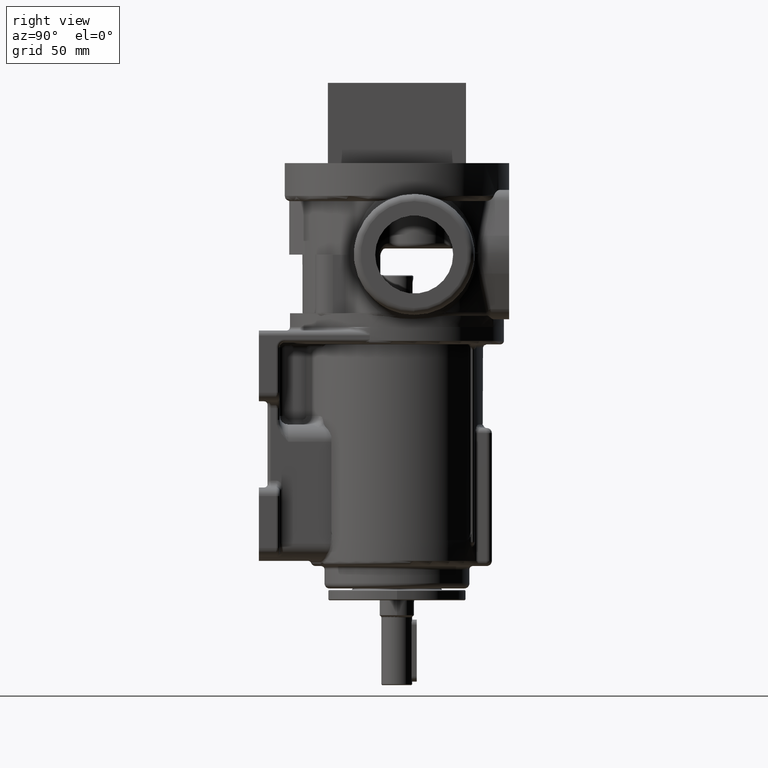
[diagram: clean part render]
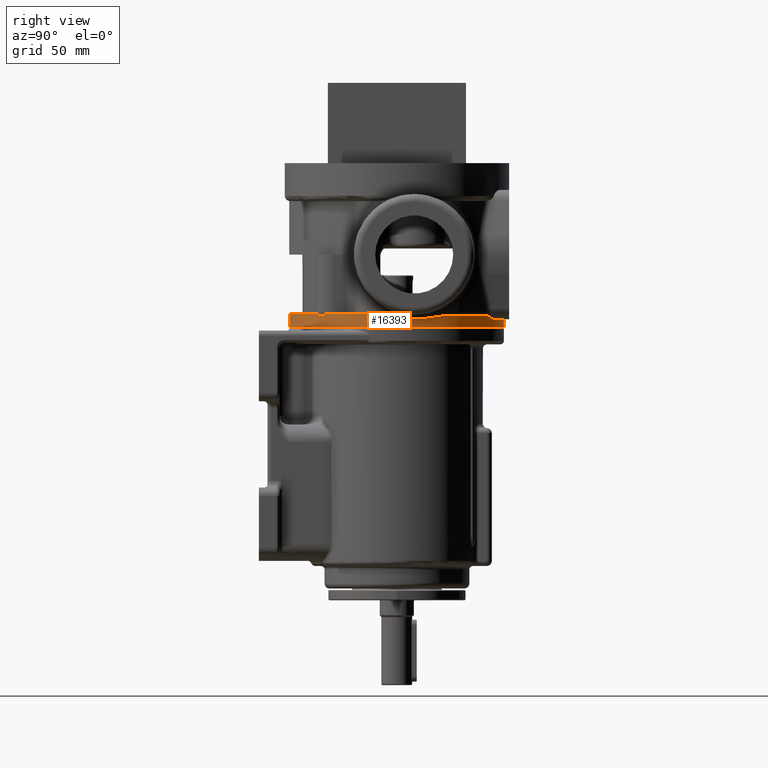
[diagram: same view with one face highlighted and labeled with its STEP entity id]
A machine part, right view. The second image highlights one B-rep face of the part: STEP entity #16393.
In plain terms, the highlighted cylindrical surface (partial cylindrical patch) has radius 62 mm, axis along (0, 0, 1).
Its self-contained STEP definition (entity closure, byte-faithful):
#3144=CARTESIAN_POINT('',(0.E0,0.E0,1.989519660128E-13));
#3145=DIRECTION('',(0.E0,0.E0,1.E0));
#3146=DIRECTION('',(8.906250000033E-1,-4.547385065827E-1,0.E0));
#3147=AXIS2_PLACEMENT_3D('',#3144,#3145,#3146);
#3153=CARTESIAN_POINT('',(0.E0,0.E0,4.5E0));
#3154=DIRECTION('',(0.E0,0.E0,1.E0));
#3155=DIRECTION('',(4.244078932258E-1,9.054711150377E-1,0.E0));
#3156=AXIS2_PLACEMENT_3D('',#3153,#3154,#3155);
#3158=DIRECTION('',(0.E0,0.E0,-1.E0));
#3159=VECTOR('',#3158,4.5E0);
#3160=CARTESIAN_POINT('',(-1.275533733362E-14,6.2E1,4.5E0));
#3161=LINE('',#3160,#3159);
#3162=DIRECTION('',(-2.796374243275E-14,0.E0,-1.E0));
#3163=VECTOR('',#3162,8.E0);
#3164=CARTESIAN_POINT('',(1.194526618915E-14,-6.2E1,8.E0));
#3165=LINE('',#3164,#3163);
#3166=CARTESIAN_POINT('',(0.E0,0.E0,8.E0));
#3167=DIRECTION('',(0.E0,0.E0,-1.E0));
#3168=DIRECTION('',(6.687776997121E-1,-7.434624323850E-1,0.E0));
#3169=AXIS2_PLACEMENT_3D('',#3166,#3167,#3168);
#3171=CARTESIAN_POINT('',(4.146421738215E1,-4.609467080787E1,8.E0));
#3172=CARTESIAN_POINT('',(4.147404042241E1,-4.608583454395E1,7.970795917285E0));
#3173=CARTESIAN_POINT('',(4.149566080502E1,-4.606637485331E1,7.912018602871E0));
#3174=CARTESIAN_POINT('',(4.153436735779E1,-4.603148256354E1,7.822991609907E0));
#3175=CARTESIAN_POINT('',(4.157974553056E1,-4.599050129453E1,7.733278020147E0));
#3176=CARTESIAN_POINT('',(4.163247500035E1,-4.594277914498E1,7.642707917360E0));
#3177=CARTESIAN_POINT('',(4.169291283188E1,-4.588794558406E1,7.551816065525E0));
#3178=CARTESIAN_POINT('',(4.176193193473E1,-4.582514957003E1,7.460456615792E0));
#3179=CARTESIAN_POINT('',(4.184013814812E1,-4.575376524199E1,7.369110925880E0));
#3180=CARTESIAN_POINT('',(4.192790572751E1,-4.567336208268E1,7.278520710927E0));
#3181=CARTESIAN_POINT('',(4.202604254382E1,-4.558309266147E1,7.189047049205E0));
#3182=CARTESIAN_POINT('',(4.213474052481E1,-4.548265220351E1,7.101721345257E0));
#3183=CARTESIAN_POINT('',(4.225375723908E1,-4.537212380746E1,7.017740186305E0));
#3184=CARTESIAN_POINT('',(4.238365259699E1,-4.525082796420E1,6.937679468659E0));
#3185=CARTESIAN_POINT('',(4.252440007743E1,-4.511860880540E1,6.862550387407E0));
#3186=CARTESIAN_POINT('',(4.267606528769E1,-4.497520406876E1,6.793305563639E0));
#3187=CARTESIAN_POINT('',(4.283726787940E1,-4.482171327741E1,6.731425141900E0));
#3188=CARTESIAN_POINT('',(4.300717108117E1,-4.465873544009E1,6.677890428626E0));
#3189=CARTESIAN_POINT('',(4.318449464332E1,-4.448730716675E1,6.633696263732E0));
#3190=CARTESIAN_POINT('',(4.336775726738E1,-4.430869229807E1,6.599664487329E0));
#3191=CARTESIAN_POINT('',(4.355605432807E1,-4.412362071628E1,6.576408868782E0));
#3192=CARTESIAN_POINT('',(4.374741201828E1,-4.393391142011E1,6.564563206114E0));
#3193=CARTESIAN_POINT('',(4.394015403221E1,-4.374114174490E1,6.564575189429E0));
#3194=CARTESIAN_POINT('',(4.412975926730E1,-4.354983469687E1,6.576435896201E0));
#3195=CARTESIAN_POINT('',(4.431474764592E1,-4.336156951742E1,6.599699449613E0));
#3196=CARTESIAN_POINT('',(4.449327928627E1,-4.317834136349E1,6.633732189165E0));
#3197=CARTESIAN_POINT('',(4.466464535254E1,-4.300103328516E1,6.677925548693E0));
#3198=CARTESIAN_POINT('',(4.482757631334E1,-4.283113238500E1,6.731459386259E0));
#3199=CARTESIAN_POINT('',(4.498105880169E1,-4.266989434005E1,6.793352245413E0));
#3200=CARTESIAN_POINT('',(4.512445580655E1,-4.251819552498E1,6.862613042557E0));
#3201=CARTESIAN_POINT('',(4.525664268372E1,-4.237744361945E1,6.937745260253E0));
#3202=CARTESIAN_POINT('',(4.537789659010E1,-4.224755753190E1,7.017798822837E0));
#3203=CARTESIAN_POINT('',(4.548839639046E1,-4.212853905896E1,7.101777938774E0));
#3204=CARTESIAN_POINT('',(4.558881201598E1,-4.201983823182E1,7.189102637644E0));
#3205=CARTESIAN_POINT('',(4.567904552910E1,-4.192171370140E1,7.278560167102E0));
#3206=CARTESIAN_POINT('',(4.575942290301E1,-4.183395042808E1,7.369138608853E0));
#3207=CARTESIAN_POINT('',(4.583078503874E1,-4.175574731333E1,7.460472184452E0));
#3208=CARTESIAN_POINT('',(4.589356288620E1,-4.168672948773E1,7.551819813436E0));
#3209=CARTESIAN_POINT('',(4.594838419405E1,-4.162628880959E1,7.642704563600E0));
#3210=CARTESIAN_POINT('',(4.599609946293E1,-4.157355267473E1,7.733274343914E0));
#3211=CARTESIAN_POINT('',(4.603707628180E1,-4.152816714391E1,7.822991162638E0));
#3212=CARTESIAN_POINT('',(4.607196464358E1,-4.148945446326E1,7.912021837053E0));
#3213=CARTESIAN_POINT('',(4.609142071157E1,-4.146783224792E1,7.970797504435E0));
#3214=CARTESIAN_POINT('',(4.610025517220E1,-4.145800855152E1,8.E0));
#3216=CARTESIAN_POINT('',(0.E0,0.E0,8.E0));
#3217=DIRECTION('',(0.E0,0.E0,-1.E0));
#3218=DIRECTION('',(9.668013314285E-1,-2.555292264067E-1,0.E0));
#3219=AXIS2_PLACEMENT_3D('',#3216,#3217,#3218);
#3221=CARTESIAN_POINT('',(5.994168254857E1,-1.584281203722E1,8.E0));
#3222=CARTESIAN_POINT('',(5.994580577703E1,-1.582721169739E1,7.975399444953E0));
#3223=CARTESIAN_POINT('',(5.995489864692E1,-1.579275995845E1,7.925014709418E0));
#3224=CARTESIAN_POINT('',(5.997121942400E1,-1.573068558547E1,7.846785501189E0));
#3225=CARTESIAN_POINT('',(5.999061107884E1,-1.565659255770E1,7.765587042459E0));
#3226=CARTESIAN_POINT('',(6.001349408609E1,-1.556867853469E1,7.681344165447E0));
#3227=CARTESIAN_POINT('',(6.004023199892E1,-1.546528222265E1,7.594386174053E0));
#3228=CARTESIAN_POINT('',(6.007127731307E1,-1.534430570716E1,7.504853794067E0));
#3229=CARTESIAN_POINT('',(6.010752842778E1,-1.520175851240E1,7.412041747454E0));
#3230=CARTESIAN_POINT('',(6.014970721798E1,-1.503410500673E1,7.316312576233E0));
#3231=CARTESIAN_POINT('',(6.019811565270E1,-1.483920999541E1,7.219175476097E0));
#3232=CARTESIAN_POINT('',(6.025249798199E1,-1.461698693381E1,7.122899631150E0));
#3233=CARTESIAN_POINT('',(6.031353998680E1,-1.436323829971E1,7.027941711480E0));
#3234=CARTESIAN_POINT('',(6.038166277493E1,-1.407437678935E1,6.935571540325E0));
#3235=CARTESIAN_POINT('',(6.045716837808E1,-1.374673836381E1,6.847479328404E0));
#3236=CARTESIAN_POINT('',(6.053893504512E1,-1.338238478474E1,6.766912017023E0));
#3237=CARTESIAN_POINT('',(6.062562339819E1,-1.298435358061E1,6.696647679997E0));
#3238=CARTESIAN_POINT('',(6.071571473729E1,-1.255664562124E1,6.639101931779E0));
#3239=CARTESIAN_POINT('',(6.080742254093E1,-1.210502294462E1,6.596294543970E0));
#3240=CARTESIAN_POINT('',(6.089949360008E1,-1.163317953824E1,6.569652970377E0));
#3241=CARTESIAN_POINT('',(6.095989405088E1,-1.131013412702E1,6.563508297173E0));
#3242=CARTESIAN_POINT('',(6.098987765221E1,-1.114606764597E1,6.563508300704E0));
#3244=CARTESIAN_POINT('',(0.E0,0.E0,6.563508326896E0));
#3245=DIRECTION('',(0.E0,0.E0,1.E0));
#3246=DIRECTION('',(9.837077026641E-1,-1.797752922935E-1,0.E0));
#3247=AXIS2_PLACEMENT_3D('',#3244,#3245,#3246);
#3249=CARTESIAN_POINT('',(6.129941904318E1,-9.294150040134E0,6.563508326843E0));
#3250=CARTESIAN_POINT('',(6.132393988173E1,-9.132423238871E0,6.563508274981E0));
#3251=CARTESIAN_POINT('',(6.137374251634E1,-8.795254665352E0,6.557445066608E0));
#3252=CARTESIAN_POINT('',(6.144904804582E1,-8.253646845722E0,6.528002285198E0));
#3253=CARTESIAN_POINT('',(6.152607299710E1,-7.659885144414E0,6.475613748256E0));
#3254=CARTESIAN_POINT('',(6.160460245862E1,-7.002493141020E0,6.397675865011E0));
#3255=CARTESIAN_POINT('',(6.168386915861E1,-6.269162368617E0,6.292412898697E0));
#3256=CARTESIAN_POINT('',(6.176224272916E1,-5.447799463725E0,6.159531308859E0));
#3257=CARTESIAN_POINT('',(6.183704478992E1,-4.527374141137E0,6.000976766587E0));
#3258=CARTESIAN_POINT('',(6.190444902448E1,-3.497566033298E0,5.821148803796E0));
#3259=CARTESIAN_POINT('',(6.195882642796E1,-2.360286215671E0,5.628949113538E0));
#3260=CARTESIAN_POINT('',(6.199428508244E1,-1.125557304072E0,5.435599990966E0));
#3261=CARTESIAN_POINT('',(6.200432647115E1,1.978119275636E-1,5.252677783262E0));
#3262=CARTESIAN_POINT('',(6.198663897956E1,1.481879453599E0,5.102117639643E0));
#3263=CARTESIAN_POINT('',(6.194278958772E1,2.768305251290E0,4.977787863646E0));
#3264=CARTESIAN_POINT('',(6.187041313229E1,4.072382461758E0,4.879358410836E0));
#3265=CARTESIAN_POINT('',(6.177948012555E1,5.265982690435E0,4.812101484995E0));
#3266=CARTESIAN_POINT('',(6.167556751697E1,6.364042062844E0,4.767327122120E0));
#3267=CARTESIAN_POINT('',(6.156119788775E1,7.385808533717E0,4.739290087186E0));
#3268=CARTESIAN_POINT('',(6.143650165418E1,8.359070359126E0,4.723778263295E0));
#3269=CARTESIAN_POINT('',(6.134353911096E1,9.004134496091E0,4.720413470701E0));
#3270=CARTESIAN_POINT('',(6.129499104130E1,9.323308063507E0,4.720413464966E0));
#3272=CARTESIAN_POINT('',(6.129499104130E1,9.323308063507E0,4.720413464966E0));
#3273=CARTESIAN_POINT('',(6.125007957310E1,9.618573222824E0,4.720413481832E0));
#3274=CARTESIAN_POINT('',(6.115528135839E1,1.021332457724E1,4.723242603318E0));
#3275=CARTESIAN_POINT('',(6.099566965394E1,1.112734510739E1,4.736744928092E0));
#3276=CARTESIAN_POINT('',(6.082310939462E1,1.203428493772E1,4.759809268249E0));
#3277=CARTESIAN_POINT('',(6.064430133932E1,1.290432539946E1,4.791488086481E0));
#3278=CARTESIAN_POINT('',(6.045624985816E1,1.375900957478E1,4.832074128476E0));
#3279=CARTESIAN_POINT('',(6.023515603245E1,1.470028619124E1,4.888033791838E0));
#3280=CARTESIAN_POINT('',(5.995103775234E1,1.582359236145E1,4.971999766864E0));
#3281=CARTESIAN_POINT('',(5.961089840741E1,1.706179980050E1,5.088384265267E0));
#3282=CARTESIAN_POINT('',(5.922817176684E1,1.834957100176E1,5.235401485333E0));
#3283=CARTESIAN_POINT('',(5.877512501080E1,1.975255760574E1,5.426554001243E0));
#3284=CARTESIAN_POINT('',(5.834026644712E1,2.099821473205E1,5.620806503220E0));
#3285=CARTESIAN_POINT('',(5.792606572952E1,2.211330010486E1,5.808547276635E0));
#3286=CARTESIAN_POINT('',(5.753428998026E1,2.311164283384E1,5.982904239459E0));
#3287=CARTESIAN_POINT('',(5.717045583782E1,2.399591214885E1,6.136248454308E0));
#3288=CARTESIAN_POINT('',(5.684007730131E1,2.476731687632E1,6.263649991319E0));
#3289=CARTESIAN_POINT('',(5.652208577935E1,2.548431696536E1,6.371338316222E0));
#3290=CARTESIAN_POINT('',(5.620929626555E1,2.616663270420E1,6.458293289039E0));
#3291=CARTESIAN_POINT('',(5.590678266567E1,2.680650041050E1,6.520375453965E0));
#3292=CARTESIAN_POINT('',(5.561678296941E1,2.740271375E1,6.556328710531E0));
#3293=CARTESIAN_POINT('',(5.543510000353E1,2.776666563710E1,6.563508233067E0));
#3294=CARTESIAN_POINT('',(5.534721028278E1,2.794076437598E1,6.563508373951E0));
#3296=CARTESIAN_POINT('',(0.E0,0.E0,6.563508326896E0));
#3297=DIRECTION('',(0.E0,0.E0,1.E0));
#3298=DIRECTION('',(8.926969767575E-1,4.506574172118E-1,0.E0));
#3299=AXIS2_PLACEMENT_3D('',#3296,#3297,#3298);
#3301=CARTESIAN_POINT('',(3.511607315213E1,5.109658898962E1,6.563523603462E0));
#3302=CARTESIAN_POINT('',(3.507472582446E1,5.112500489393E1,6.563524596138E0));
#3303=CARTESIAN_POINT('',(3.498995455109E1,5.118311886829E1,6.566889320924E0));
#3304=CARTESIAN_POINT('',(3.485362762400E1,5.127605577354E1,6.580450162743E0));
#3305=CARTESIAN_POINT('',(3.471679475694E1,5.136879514188E1,6.599396024823E0));
#3306=CARTESIAN_POINT('',(3.458356212386E1,5.145857847504E1,6.620353081359E0));
#3307=CARTESIAN_POINT('',(3.446049996909E1,5.154105597141E1,6.640196224554E0));
#3308=CARTESIAN_POINT('',(3.434954963525E1,5.161505626623E1,6.657375556863E0));
#3309=CARTESIAN_POINT('',(3.424196692549E1,5.168649028669E1,6.672817693923E0));
#3310=CARTESIAN_POINT('',(3.413477550596E1,5.175734137270E1,6.686366823725E0));
#3311=CARTESIAN_POINT('',(3.403365060079E1,5.182388508608E1,6.697068095728E0));
#3312=CARTESIAN_POINT('',(3.394207828172E1,5.188389828886E1,6.704779681924E0));
#3313=CARTESIAN_POINT('',(3.385997333692E1,5.193751080767E1,6.709949072370E0));
#3314=CARTESIAN_POINT('',(3.378780988356E1,5.198447879602E1,6.713073166511E0));
#3315=CARTESIAN_POINT('',(3.372501212057E1,5.202523620071E1,6.714660912278E0));
#3316=CARTESIAN_POINT('',(3.366885164794E1,5.206159610883E1,6.715161003321E0));
#3317=CARTESIAN_POINT('',(3.361691609280E1,5.209514526299E1,6.714854495371E0));
#3318=CARTESIAN_POINT('',(3.356671424961E1,5.212750610864E1,6.713852737335E0));
#3319=CARTESIAN_POINT('',(3.351574203244E1,5.216029404158E1,6.712112801964E0));
#3320=CARTESIAN_POINT('',(3.346441093422E1,5.219324134259E1,6.709599137474E0));
#3321=CARTESIAN_POINT('',(3.341312395863E1,5.222608902154E1,6.706319023483E0));
#3322=CARTESIAN_POINT('',(3.336235052244E1,5.225853765717E1,6.702330421008E0));
#3323=CARTESIAN_POINT('',(3.331210209530E1,5.229058278137E1,6.697670121494E0));
#3324=CARTESIAN_POINT('',(3.326075938105E1,5.232325654652E1,6.692204305879E0));
#3325=CARTESIAN_POINT('',(3.320715206808E1,5.235729587994E1,6.685736937154E0));
#3326=CARTESIAN_POINT('',(3.315256066994E1,5.239188026755E1,6.678343523708E0));
#3327=CARTESIAN_POINT('',(3.309714318938E1,5.242690739253E1,6.670023521436E0));
#3328=CARTESIAN_POINT('',(3.303789105618E1,5.246426912478E1,6.660223697448E0));
#3329=CARTESIAN_POINT('',(3.297224501772E1,5.250555535168E1,6.648286098355E0));
#3330=CARTESIAN_POINT('',(3.289703003311E1,5.255271993246E1,6.633215488985E0));
#3331=CARTESIAN_POINT('',(3.281310000629E1,5.260517098463E1,6.614635170307E0));
#3332=CARTESIAN_POINT('',(3.272254569573E1,5.266155167533E1,6.592538677134E0));
#3333=CARTESIAN_POINT('',(3.262669060174E1,5.272099697408E1,6.566921970112E0));
#3334=CARTESIAN_POINT('',(3.252591290007E1,5.278323472837E1,6.537599538553E0));
#3335=CARTESIAN_POINT('',(3.242019287496E1,5.284824070613E1,6.504334050692E0));
#3336=CARTESIAN_POINT('',(3.230678875176E1,5.291765095647E1,6.465954448033E0));
#3337=CARTESIAN_POINT('',(3.218311703831E1,5.299296764002E1,6.421107537772E0));
#3338=CARTESIAN_POINT('',(3.204688731222E1,5.307547799019E1,6.368370066289E0));
#3339=CARTESIAN_POINT('',(3.189483312392E1,5.316701409485E1,6.305789556635E0));
#3340=CARTESIAN_POINT('',(3.172171025026E1,5.327052435270E1,6.230340253497E0));
#3341=CARTESIAN_POINT('',(3.152491569681E1,5.338724729980E1,6.139918218497E0));
#3342=CARTESIAN_POINT('',(3.132005482565E1,5.350769457426E1,6.041677129085E0));
#3343=CARTESIAN_POINT('',(3.111742996092E1,5.362575580804E1,5.941621907659E0));
#3344=CARTESIAN_POINT('',(3.093498098154E1,5.373120614368E1,5.850039510433E0));
#3345=CARTESIAN_POINT('',(3.074103210028E1,5.384240824893E1,5.751902712301E0));
#3346=CARTESIAN_POINT('',(3.056168760207E1,5.394438118705E1,5.661267041750E0));
#3347=CARTESIAN_POINT('',(3.039442723092E1,5.403878409706E1,5.577507541222E0));
#3348=CARTESIAN_POINT('',(3.024056221214E1,5.412501982242E1,5.501578122889E0));
#3349=CARTESIAN_POINT('',(3.010127173089E1,5.420259250771E1,5.434078722378E0));
#3350=CARTESIAN_POINT('',(2.997546436928E1,5.427225666850E1,5.374328753700E0));
#3351=CARTESIAN_POINT('',(2.985882551017E1,5.433650805080E1,5.320066333586E0));
#3352=CARTESIAN_POINT('',(2.974740980911E1,5.439758174482E1,5.269324456067E0));
#3353=CARTESIAN_POINT('',(2.963659544916E1,5.445803485041E1,5.220020286081E0));
#3354=CARTESIAN_POINT('',(2.952489376471E1,5.451867614589E1,5.171591548944E0));
#3355=CARTESIAN_POINT('',(2.941277177384E1,5.457924788603E1,5.124329392422E0));
#3356=CARTESIAN_POINT('',(2.933745199881E1,5.461973771702E1,5.093523894541E0));
#3357=CARTESIAN_POINT('',(2.929966880161E1,5.463999824410E1,5.078316792652E0));
#3359=CARTESIAN_POINT('',(2.929966880161E1,5.463999824410E1,5.078316792652E0));
#3360=CARTESIAN_POINT('',(2.918096357888E1,5.470365168156E1,5.030544312062E0));
#3361=CARTESIAN_POINT('',(2.894146697943E1,5.483108291351E1,4.940772391703E0));
#3362=CARTESIAN_POINT('',(2.857506271216E1,5.502293565910E1,4.823170619851E0));
#3363=CARTESIAN_POINT('',(2.820402018057E1,5.521405351492E1,4.723482707949E0));
#3364=CARTESIAN_POINT('',(2.782946428752E1,5.540378965813E1,4.641879745833E0));
#3365=CARTESIAN_POINT('',(2.745232628622E1,5.559162854477E1,4.578427933873E0));
#3366=CARTESIAN_POINT('',(2.707278587618E1,5.577744918749E1,4.533080935026E0));
#3367=CARTESIAN_POINT('',(2.669244271748E1,5.596045530652E1,4.505974493270E0));
#3368=CARTESIAN_POINT('',(2.643961647106E1,5.607999772992E1,4.5E0));
#3369=CARTESIAN_POINT('',(2.631328938E1,5.613920913234E1,4.5E0));
#3376=CARTESIAN_POINT('',(0.E0,0.E0,0.E0));
#3377=DIRECTION('',(0.E0,0.E0,1.E0));
#3378=DIRECTION('',(0.E0,-1.E0,0.E0));
#3379=AXIS2_PLACEMENT_3D('',#3376,#3377,#3378);
#12264=CARTESIAN_POINT('',(5.521875000021E1,-2.819378740813E1,
1.989519779649E-13));
#12265=CARTESIAN_POINT('',(0.E0,6.2E1,1.989519397294E-13));
#12266=VERTEX_POINT('',#12264);
#12267=VERTEX_POINT('',#12265);
#12269=CARTESIAN_POINT('',(0.E0,-6.2E1,0.E0));
#12271=VERTEX_POINT('',#12269);
#12272=CARTESIAN_POINT('',(1.194526618915E-14,-6.2E1,8.E0));
#12273=VERTEX_POINT('',#12272);
#12459=CARTESIAN_POINT('',(-1.275533756243E-14,6.2E1,4.5E0));
#12461=VERTEX_POINT('',#12459);
#12474=CARTESIAN_POINT('',(5.994168254857E1,-1.584281203722E1,8.E0));
#12476=VERTEX_POINT('',#12474);
#12494=CARTESIAN_POINT('',(4.610025517220E1,-4.145800855152E1,8.E0));
#12495=VERTEX_POINT('',#12494);
#12496=CARTESIAN_POINT('',(4.146421738215E1,-4.609467080787E1,8.E0));
#12498=VERTEX_POINT('',#12496);
#12512=CARTESIAN_POINT('',(2.631328938E1,5.613920913234E1,4.5E0));
#12513=VERTEX_POINT('',#12512);
#12514=VERTEX_POINT('',#3359);
#12515=CARTESIAN_POINT('',(5.534721255897E1,2.794075986713E1,6.563508326896E0));
#12516=CARTESIAN_POINT('',(3.511607315213E1,5.109658898962E1,6.563508326896E0));
#12517=VERTEX_POINT('',#12515);
#12518=VERTEX_POINT('',#12516);
#12519=CARTESIAN_POINT('',(6.098987756518E1,-1.114606812220E1,
6.563508326896E0));
#12520=CARTESIAN_POINT('',(6.129941904232E1,-9.294150045810E0,
6.563508326896E0));
#12521=VERTEX_POINT('',#12519);
#12522=VERTEX_POINT('',#12520);
#12523=VERTEX_POINT('',#3272);
#16360=CARTESIAN_POINT('',(0.E0,0.E0,-7.405E1));
#16361=DIRECTION('',(0.E0,0.E0,1.E0));
#16362=DIRECTION('',(0.E0,-1.E0,0.E0));
#16363=AXIS2_PLACEMENT_3D('',#16360,#16361,#16362);
#16364=CYLINDRICAL_SURFACE('',#16363,6.2E1);
#16365=ORIENTED_EDGE('',*,*,#16349,.T.);
#16366=ORIENTED_EDGE('',*,*,#16338,.T.);
#16367=ORIENTED_EDGE('',*,*,#16336,.F.);
#16369=ORIENTED_EDGE('',*,*,#16368,.F.);
#16370=ORIENTED_EDGE('',*,*,#16319,.F.);
#16372=ORIENTED_EDGE('',*,*,#16371,.F.);
#16374=ORIENTED_EDGE('',*,*,#16373,.T.);
#16376=ORIENTED_EDGE('',*,*,#16375,.F.);
#16378=ORIENTED_EDGE('',*,*,#16377,.T.);
#16380=ORIENTED_EDGE('',*,*,#16379,.T.);
#16382=ORIENTED_EDGE('',*,*,#16381,.T.);
#16384=ORIENTED_EDGE('',*,*,#16383,.T.);
#16386=ORIENTED_EDGE('',*,*,#16385,.T.);
#16388=ORIENTED_EDGE('',*,*,#16387,.T.);
#16390=ORIENTED_EDGE('',*,*,#16389,.T.);
#16391=EDGE_LOOP('',(#16365,#16366,#16367,#16369,#16370,#16372,#16374,#16376,
#16378,#16380,#16382,#16384,#16386,#16388,#16390));
#16392=FACE_OUTER_BOUND('',#16391,.F.);
#16393=ADVANCED_FACE('',(#16392),#16364,.T.);
#3148=CIRCLE('',#3147,6.2E1);
#3157=CIRCLE('',#3156,6.2E1);
#3170=CIRCLE('',#3169,6.2E1);
#3215=B_SPLINE_CURVE_WITH_KNOTS('',3,(#3171,#3172,#3173,#3174,#3175,#3176,#3177,
#3178,#3179,#3180,#3181,#3182,#3183,#3184,#3185,#3186,#3187,#3188,#3189,#3190,
#3191,#3192,#3193,#3194,#3195,#3196,#3197,#3198,#3199,#3200,#3201,#3202,#3203,
#3204,#3205,#3206,#3207,#3208,#3209,#3210,#3211,#3212,#3213,#3214),
.UNSPECIFIED.,.F.,.F.,(4,1,1,1,1,1,1,1,1,1,1,1,1,1,1,1,1,1,1,1,1,1,1,1,1,1,1,1,
1,1,1,1,1,1,1,1,1,1,1,1,1,4),(0.E0,2.439024390244E-2,4.878048780488E-2,
7.317073170732E-2,9.756097560976E-2,1.219512195122E-1,1.463414634146E-1,
1.707317073171E-1,1.951219512195E-1,2.195121951220E-1,2.439024390244E-1,
2.682926829268E-1,2.926829268293E-1,3.170731707317E-1,3.414634146341E-1,
3.658536585366E-1,3.902439024390E-1,4.146341463415E-1,4.390243902439E-1,
4.634146341463E-1,4.878048780488E-1,5.121951219512E-1,5.365853658537E-1,
5.609756097561E-1,5.853658536585E-1,6.097560975610E-1,6.341463414634E-1,
6.585365853659E-1,6.829268292683E-1,7.073170731707E-1,7.317073170732E-1,
7.560975609756E-1,7.804878048780E-1,8.048780487805E-1,8.292682926829E-1,
8.536585365854E-1,8.780487804878E-1,9.024390243902E-1,9.268292682927E-1,
9.512195121951E-1,9.756097560976E-1,1.E0),.UNSPECIFIED.);
#3220=CIRCLE('',#3219,6.2E1);
#3243=B_SPLINE_CURVE_WITH_KNOTS('',3,(#3221,#3222,#3223,#3224,#3225,#3226,#3227,
#3228,#3229,#3230,#3231,#3232,#3233,#3234,#3235,#3236,#3237,#3238,#3239,#3240,
#3241,#3242),.UNSPECIFIED.,.F.,.F.,(4,1,1,1,1,1,1,1,1,1,1,1,1,1,1,1,1,1,1,4),(
0.E0,5.263157894737E-2,1.052631578947E-1,1.578947368421E-1,2.105263157895E-1,
2.631578947368E-1,3.157894736842E-1,3.684210526316E-1,4.210526315789E-1,
4.736842105263E-1,5.263157894737E-1,5.789473684211E-1,6.315789473684E-1,
6.842105263158E-1,7.368421052632E-1,7.894736842105E-1,8.421052631579E-1,
8.947368421053E-1,9.473684210526E-1,1.E0),.UNSPECIFIED.);
#3248=CIRCLE('',#3247,6.2E1);
#3271=B_SPLINE_CURVE_WITH_KNOTS('',3,(#3249,#3250,#3251,#3252,#3253,#3254,#3255,
#3256,#3257,#3258,#3259,#3260,#3261,#3262,#3263,#3264,#3265,#3266,#3267,#3268,
#3269,#3270),.UNSPECIFIED.,.F.,.F.,(4,1,1,1,1,1,1,1,1,1,1,1,1,1,1,1,1,1,1,4),(
0.E0,5.263157894737E-2,1.052631578947E-1,1.578947368421E-1,2.105263157895E-1,
2.631578947368E-1,3.157894736842E-1,3.684210526316E-1,4.210526315789E-1,
4.736842105263E-1,5.263157894737E-1,5.789473684211E-1,6.315789473684E-1,
6.842105263158E-1,7.368421052632E-1,7.894736842105E-1,8.421052631579E-1,
8.947368421053E-1,9.473684210526E-1,1.E0),.UNSPECIFIED.);
#3295=B_SPLINE_CURVE_WITH_KNOTS('',3,(#3272,#3273,#3274,#3275,#3276,#3277,#3278,
#3279,#3280,#3281,#3282,#3283,#3284,#3285,#3286,#3287,#3288,#3289,#3290,#3291,
#3292,#3293,#3294),.UNSPECIFIED.,.F.,.F.,(4,1,1,1,1,1,1,1,1,1,1,1,1,1,1,1,1,1,1,
1,4),(0.E0,5.E-2,1.E-1,1.5E-1,2.E-1,2.5E-1,3.E-1,3.5E-1,4.E-1,4.5E-1,5.E-1,
5.5E-1,6.E-1,6.5E-1,7.E-1,7.5E-1,8.E-1,8.5E-1,9.E-1,9.5E-1,1.E0),.UNSPECIFIED.);
#3300=CIRCLE('',#3299,6.2E1);
#3358=B_SPLINE_CURVE_WITH_KNOTS('',3,(#3301,#3302,#3303,#3304,#3305,#3306,#3307,
#3308,#3309,#3310,#3311,#3312,#3313,#3314,#3315,#3316,#3317,#3318,#3319,#3320,
#3321,#3322,#3323,#3324,#3325,#3326,#3327,#3328,#3329,#3330,#3331,#3332,#3333,
#3334,#3335,#3336,#3337,#3338,#3339,#3340,#3341,#3342,#3343,#3344,#3345,#3346,
#3347,#3348,#3349,#3350,#3351,#3352,#3353,#3354,#3355,#3356,#3357),
.UNSPECIFIED.,.F.,.F.,(4,1,1,1,1,1,1,1,1,1,1,1,1,1,1,1,1,1,1,1,1,1,1,1,1,1,1,1,
1,1,1,1,1,1,1,1,1,1,1,1,1,1,1,1,1,1,1,1,1,1,1,1,1,1,4),(0.E0,1.851851851852E-2,
3.703703703704E-2,5.555555555556E-2,7.407407407407E-2,9.259259259259E-2,
1.111111111111E-1,1.296296296296E-1,1.481481481481E-1,1.666666666667E-1,
1.851851851852E-1,2.037037037037E-1,2.222222222222E-1,2.407407407407E-1,
2.592592592593E-1,2.777777777778E-1,2.962962962963E-1,3.148148148148E-1,
3.333333333333E-1,3.518518518519E-1,3.703703703704E-1,3.888888888889E-1,
4.074074074074E-1,4.259259259259E-1,4.444444444444E-1,4.629629629630E-1,
4.814814814815E-1,5.E-1,5.185185185185E-1,5.370370370370E-1,5.555555555556E-1,
5.740740740741E-1,5.925925925926E-1,6.111111111111E-1,6.296296296296E-1,
6.481481481481E-1,6.666666666667E-1,6.851851851852E-1,7.037037037037E-1,
7.222222222222E-1,7.407407407407E-1,7.592592592593E-1,7.777777777778E-1,
7.962962962963E-1,8.148148148148E-1,8.333333333333E-1,8.518518518519E-1,
8.703703703704E-1,8.888888888889E-1,9.074074074074E-1,9.259259259259E-1,
9.444444444444E-1,9.629629629630E-1,9.814814814815E-1,1.E0),.UNSPECIFIED.);
#3370=B_SPLINE_CURVE_WITH_KNOTS('',3,(#3359,#3360,#3361,#3362,#3363,#3364,#3365,
#3366,#3367,#3368,#3369),.UNSPECIFIED.,.F.,.F.,(4,1,1,1,1,1,1,1,4),(0.E0,
1.25E-1,2.5E-1,3.75E-1,5.E-1,6.25E-1,7.5E-1,8.75E-1,1.E0),.UNSPECIFIED.);
#3380=CIRCLE('',#3379,6.2E1);
#16319=EDGE_CURVE('',#12273,#12271,#3165,.T.);
#16336=EDGE_CURVE('',#12266,#12267,#3148,.T.);
#16338=EDGE_CURVE('',#12461,#12267,#3161,.T.);
#16349=EDGE_CURVE('',#12513,#12461,#3157,.T.);
#16368=EDGE_CURVE('',#12271,#12266,#3380,.T.);
#16371=EDGE_CURVE('',#12498,#12273,#3170,.T.);
#16373=EDGE_CURVE('',#12498,#12495,#3215,.T.);
#16375=EDGE_CURVE('',#12476,#12495,#3220,.T.);
#16377=EDGE_CURVE('',#12476,#12521,#3243,.T.);
#16379=EDGE_CURVE('',#12521,#12522,#3248,.T.);
#16381=EDGE_CURVE('',#12522,#12523,#3271,.T.);
#16383=EDGE_CURVE('',#12523,#12517,#3295,.T.);
#16385=EDGE_CURVE('',#12517,#12518,#3300,.T.);
#16387=EDGE_CURVE('',#12518,#12514,#3358,.T.);
#16389=EDGE_CURVE('',#12514,#12513,#3370,.T.);